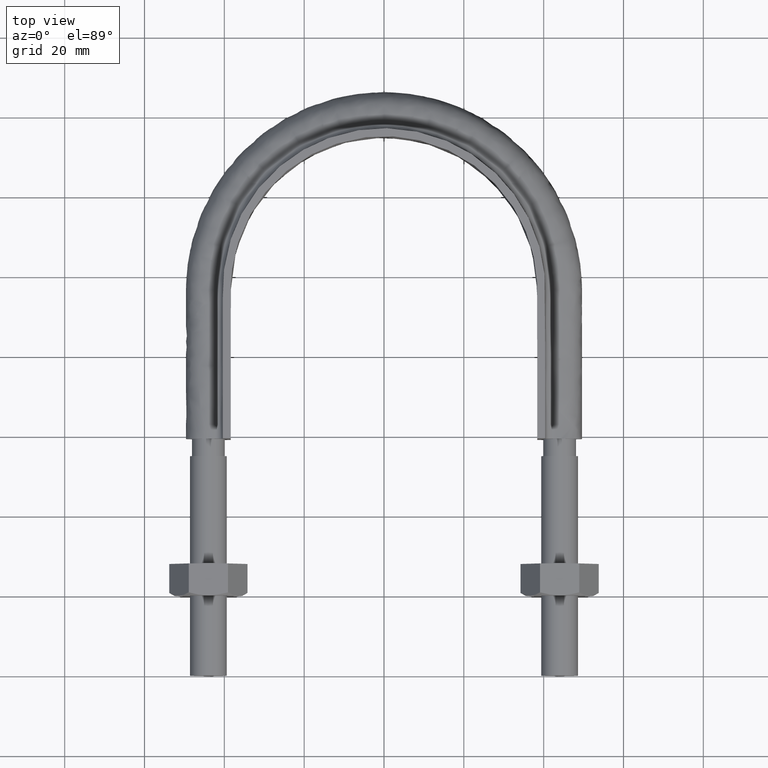
[diagram: clean part render]
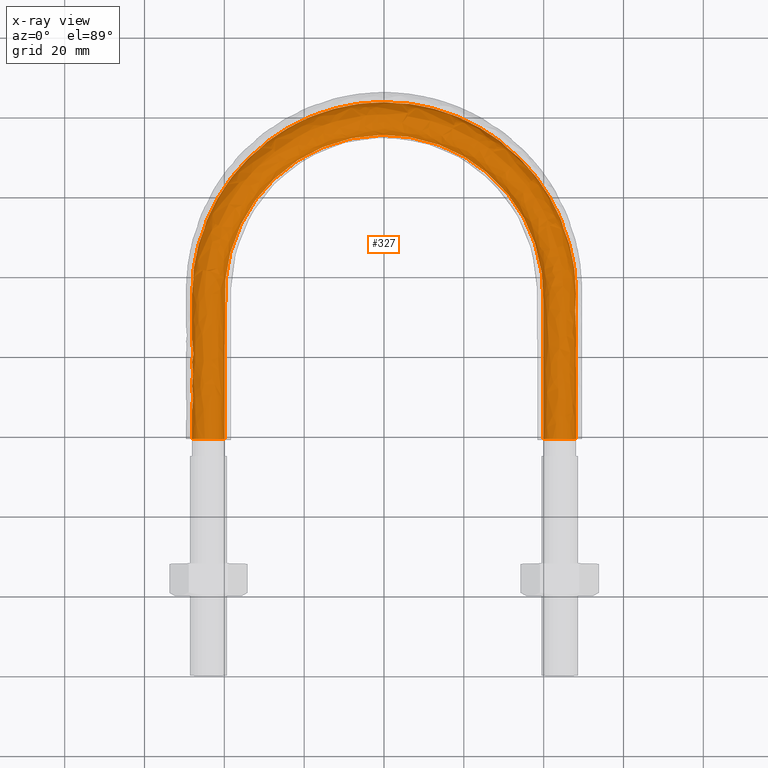
[diagram: x-ray — body ghosted, one internal face saturated and labeled with its STEP entity id]
A machine part, top view, then the same camera in x-ray: the body is ghosted and one INTERNAL B-rep face — a face not visible from any outside direction — is saturated and labeled: STEP entity #327.
In plain terms, the highlighted face is a freeform B-spline surface patch.
Its self-contained STEP definition (entity closure, byte-faithful):
#327 = ADVANCED_FACE( '', ( #423, #424 ), #425, .T. );
#423 = FACE_OUTER_BOUND( '', #1273, .T. );
#424 = FACE_OUTER_BOUND( '', #1274, .T. );
#425 = B_SPLINE_SURFACE_WITH_KNOTS( '', 3, 3, ( ( #1275, #1276, #1277, #1278, #1279, #1280, #1281, #1282, #1283, #1284, #1285, #1286, #1287, #1288, #1289 ), ( #1290, #1291, #1292, #1293, #1294, #1295, #1296, #1297, #1298, #1299, #1300, #1301, #1302, #1303, #1304 ), ( #1305, #1306, #1307, #1308, #1309, #1310, #1311, #1312, #1313, #1314, #1315, #1316, #1317, #1318, #1319 ), ( #1320, #1321, #1322, #1323, #1324, #1325, #1326, #1327, #1328, #1329, #1330, #1331, #1332, #1333, #1334 ), ( #1335, #1336, #1337, #1338, #1339, #1340, #1341, #1342, #1343, #1344, #1345, #1346, #1347, #1348, #1349 ), ( #1350, #1351, #1352, #1353, #1354, #1355, #1356, #1357, #1358, #1359, #1360, #1361, #1362, #1363, #1364 ), ( #1365, #1366, #1367, #1368, #1369, #1370, #1371, #1372, #1373, #1374, #1375, #1376, #1377, #1378, #1379 ), ( #1380, #1381, #1382, #1383, #1384, #1385, #1386, #1387, #1388, #1389, #1390, #1391, #1392, #1393, #1394 ), ( #1395, #1396, #1397, #1398, #1399, #1400, #1401, #1402, #1403, #1404, #1405, #1406, #1407, #1408, #1409 ), ( #1410, #1411, #1412, #1413, #1414, #1415, #1416, #1417, #1418, #1419, #1420, #1421, #1422, #1423, #1424 ) ), .UNSPECIFIED., .T., .F., .F., ( 2, 1, 1, 1, 1, 1, 1, 1, 1, 1, 1, 2 ), ( 4, 3, 1, 1, 1, 1, 1, 3, 4 ), ( -0.285714285714286, -0.142857142857143, 0.000000000000000, 0.142857142857143, 0.285714285714286, 0.428571428571429, 0.571428571428571, 0.714285714285714, 0.857142857142857, 1.00000000000000, 1.14285714285714, 1.28571428571429 ), ( 0.000000000000000, 1.00000000000000, 2.00000000000000, 3.00000000000000, 4.00000000000000, 5.00000000000000, 6.00000000000000, 7.00000000000000, 8.00000000000000 ), .UNSPECIFIED. );
#1273 = EDGE_LOOP( '', ( #1662, #1663, #1664, #1665, #1666, #1667, #1668 ) );
#1274 = EDGE_LOOP( '', ( #1669, #1670, #1671, #1672, #1673, #1674, #1675 ) );
#1275 = CARTESIAN_POINT( '', ( 41.0768231851220, 55.5000000000000, -3.66554778583225 ) );
#1276 = CARTESIAN_POINT( '', ( 41.0768231851220, 68.8666666666667, -3.66554778583225 ) );
#1277 = CARTESIAN_POINT( '', ( 41.0768231851220, 82.2333333333333, -3.66554778583225 ) );
#1278 = CARTESIAN_POINT( '', ( 41.0768231851220, 95.6000000000000, -3.66554778583225 ) );
#1279 = CARTESIAN_POINT( '', ( 41.0768231851220, 102.753960483642, -3.66554778583225 ) );
#1280 = CARTESIAN_POINT( '', ( 37.2364868135197, 117.104191233056, -3.66554778583225 ) );
#1281 = CARTESIAN_POINT( '', ( 21.4984956854616, 132.834859514207, -3.66554778583225 ) );
#1282 = CARTESIAN_POINT( '', ( 3.08505630732181E-014, 138.597805020579, -3.66554778583225 ) );
#1283 = CARTESIAN_POINT( '', ( -21.4984956854615, 132.834859514207, -3.66554778583225 ) );
#1284 = CARTESIAN_POINT( '', ( -37.2364868135197, 117.104191233056, -3.66554778583225 ) );
#1285 = CARTESIAN_POINT( '', ( -41.0768231851219, 102.753960483642, -3.66554778583225 ) );
#1286 = CARTESIAN_POINT( '', ( -41.0768231851220, 95.6000000000000, -3.66554778583225 ) );
#1287 = CARTESIAN_POINT( '', ( -41.0768231851220, 82.2333333333333, -3.66554778583225 ) );
#1288 = CARTESIAN_POINT( '', ( -41.0768231851220, 68.8666666666667, -3.66554778583225 ) );
#1289 = CARTESIAN_POINT( '', ( -41.0768231851220, 55.5000000000000, -3.66554778583225 ) );
#1290 = CARTESIAN_POINT( '', ( 39.3115884074390, 55.5000000000000, 0.000000000000000 ) );
#1291 = CARTESIAN_POINT( '', ( 39.3115884074390, 68.8666666666667, 0.000000000000000 ) );
#1292 = CARTESIAN_POINT( '', ( 39.3115884074390, 82.2333333333333, 0.000000000000000 ) );
#1293 = CARTESIAN_POINT( '', ( 39.3115884074390, 95.6000000000000, 0.000000000000000 ) );
#1294 = CARTESIAN_POINT( '', ( 39.3115884074390, 102.438631661554, 0.000000000000000 ) );
#1295 = CARTESIAN_POINT( '', ( 35.6362865929300, 116.183754606431, 0.000000000000000 ) );
#1296 = CARTESIAN_POINT( '', ( 20.5746196573468, 131.233676607477, 0.000000000000000 ) );
#1297 = CARTESIAN_POINT( '', ( 2.97569846145795E-014, 136.750544307420, 0.000000000000000 ) );
#1298 = CARTESIAN_POINT( '', ( -20.5746196573468, 131.233676607477, 0.000000000000000 ) );
#1299 = CARTESIAN_POINT( '', ( -35.6362865929299, 116.183754606431, 0.000000000000000 ) );
#1300 = CARTESIAN_POINT( '', ( -39.3115884074390, 102.438631661554, 0.000000000000000 ) );
#1301 = CARTESIAN_POINT( '', ( -39.3115884074390, 95.6000000000000, 0.000000000000000 ) );
#1302 = CARTESIAN_POINT( '', ( -39.3115884074390, 82.2333333333333, 0.000000000000000 ) );
#1303 = CARTESIAN_POINT( '', ( -39.3115884074390, 68.8666666666667, 0.000000000000000 ) );
#1304 = CARTESIAN_POINT( '', ( -39.3115884074390, 55.5000000000000, 0.000000000000000 ) );
#1305 = CARTESIAN_POINT( '', ( 41.0768231851220, 55.5000000000000, 3.66554778583225 ) );
#1306 = CARTESIAN_POINT( '', ( 41.0768231851220, 68.8666666666667, 3.66554778583225 ) );
#1307 = CARTESIAN_POINT( '', ( 41.0768231851220, 82.2333333333333, 3.66554778583225 ) );
#1308 = CARTESIAN_POINT( '', ( 41.0768231851220, 95.6000000000000, 3.66554778583225 ) );
#1309 = CARTESIAN_POINT( '', ( 41.0768231851220, 102.753960483642, 3.66554778583225 ) );
#1310 = CARTESIAN_POINT( '', ( 37.2364868135197, 117.104191233056, 3.66554778583225 ) );
#1311 = CARTESIAN_POINT( '', ( 21.4984956854616, 132.834859514207, 3.66554778583225 ) );
#1312 = CARTESIAN_POINT( '', ( 3.08505630732181E-014, 138.597805020579, 3.66554778583225 ) );
#1313 = CARTESIAN_POINT( '', ( -21.4984956854615, 132.834859514207, 3.66554778583225 ) );
#1314 = CARTESIAN_POINT( '', ( -37.2364868135197, 117.104191233056, 3.66554778583225 ) );
#1315 = CARTESIAN_POINT( '', ( -41.0768231851219, 102.753960483642, 3.66554778583225 ) );
#1316 = CARTESIAN_POINT( '', ( -41.0768231851219, 95.6000000000000, 3.66554778583225 ) );
#1317 = CARTESIAN_POINT( '', ( -41.0768231851219, 82.2333333333333, 3.66554778583225 ) );
#1318 = CARTESIAN_POINT( '', ( -41.0768231851220, 68.8666666666667, 3.66554778583225 ) );
#1319 = CARTESIAN_POINT( '', ( -41.0768231851220, 55.5000000000000, 3.66554778583225 ) );
#1320 = CARTESIAN_POINT( '', ( 45.0432697263483, 55.5000000000000, 4.57086332538454 ) );
#1321 = CARTESIAN_POINT( '', ( 45.0432697263483, 68.8666666666667, 4.57086332538454 ) );
#1322 = CARTESIAN_POINT( '', ( 45.0432697263483, 82.2333333333333, 4.57086332538454 ) );
#1323 = CARTESIAN_POINT( '', ( 45.0432697263483, 95.6000000000000, 4.57086332538454 ) );
#1324 = CARTESIAN_POINT( '', ( 45.0432697263483, 103.462497915337, 4.57086332538454 ) );
#1325 = CARTESIAN_POINT( '', ( 40.8321040710490, 119.172393559597, 4.57086332538454 ) );
#1326 = CARTESIAN_POINT( '', ( 23.5744262769990, 136.432684847450, 4.57086332538454 ) );
#1327 = CARTESIAN_POINT( '', ( 3.39609526445041E-014, 142.748562165798, 4.57086332538454 ) );
#1328 = CARTESIAN_POINT( '', ( -23.5744262769989, 136.432684847450, 4.57086332538454 ) );
#1329 = CARTESIAN_POINT( '', ( -40.8321040710490, 119.172393559597, 4.57086332538453 ) );
#1330 = CARTESIAN_POINT( '', ( -45.0432697263483, 103.462497915337, 4.57086332538454 ) );
#1331 = CARTESIAN_POINT( '', ( -45.0432697263483, 95.6000000000000, 4.57086332538454 ) );
#1332 = CARTESIAN_POINT( '', ( -45.0432697263483, 82.2333333333333, 4.57086332538454 ) );
#1333 = CARTESIAN_POINT( '', ( -45.0432697263483, 68.8666666666667, 4.57086332538454 ) );
#1334 = CARTESIAN_POINT( '', ( -45.0432697263483, 55.5000000000000, 4.57086332538454 ) );
#1335 = CARTESIAN_POINT( '', ( 48.2241128848103, 55.5000000000000, 2.03422555230246 ) );
#1336 = CARTESIAN_POINT( '', ( 48.2241128848103, 68.8666666666667, 2.03422555230246 ) );
#1337 = CARTESIAN_POINT( '', ( 48.2241128848103, 82.2333333333333, 2.03422555230246 ) );
#1338 = CARTESIAN_POINT( '', ( 48.2241128848103, 95.6000000000000, 2.03422555230246 ) );
#1339 = CARTESIAN_POINT( '', ( 48.2241128848103, 104.030700819044, 2.03422555230246 ) );
#1340 = CARTESIAN_POINT( '', ( 43.7155652333729, 120.830963050530, 2.03422555230246 ) );
#1341 = CARTESIAN_POINT( '', ( 25.2391933552645, 139.317916749011, 2.03422555230246 ) );
#1342 = CARTESIAN_POINT( '', ( 3.08991341379600E-014, 146.077210952710, 2.03422555230246 ) );
#1343 = CARTESIAN_POINT( '', ( -25.2391933552644, 139.317916749011, 2.03422555230247 ) );
#1344 = CARTESIAN_POINT( '', ( -43.7155652333728, 120.830963050530, 2.03422555230246 ) );
#1345 = CARTESIAN_POINT( '', ( -48.2241128848102, 104.030700819044, 2.03422555230246 ) );
#1346 = CARTESIAN_POINT( '', ( -48.2241128848102, 95.6000000000000, 2.03422555230246 ) );
#1347 = CARTESIAN_POINT( '', ( -48.2241128848102, 82.2333333333333, 2.03422555230246 ) );
#1348 = CARTESIAN_POINT( '', ( -48.2241128848102, 68.8666666666667, 2.03422555230246 ) );
#1349 = CARTESIAN_POINT( '', ( -48.2241128848102, 55.5000000000000, 2.03422555230246 ) );
#1350 = CARTESIAN_POINT( '', ( 48.2241128848103, 55.5000000000000, -2.03422555230246 ) );
#1351 = CARTESIAN_POINT( '', ( 48.2241128848103, 68.8666666666667, -2.03422555230246 ) );
#1352 = CARTESIAN_POINT( '', ( 48.2241128848103, 82.2333333333333, -2.03422555230246 ) );
#1353 = CARTESIAN_POINT( '', ( 48.2241128848103, 95.6000000000000, -2.03422555230246 ) );
#1354 = CARTESIAN_POINT( '', ( 48.2241128848103, 104.030700819044, -2.03422555230246 ) );
#1355 = CARTESIAN_POINT( '', ( 43.7155652333729, 120.830963050530, -2.03422555230246 ) );
#1356 = CARTESIAN_POINT( '', ( 25.2391933552645, 139.317916749011, -2.03422555230246 ) );
#1357 = CARTESIAN_POINT( '', ( 3.08991341379600E-014, 146.077210952710, -2.03422555230246 ) );
#1358 = CARTESIAN_POINT( '', ( -25.2391933552644, 139.317916749011, -2.03422555230246 ) );
#1359 = CARTESIAN_POINT( '', ( -43.7155652333728, 120.830963050530, -2.03422555230246 ) );
#1360 = CARTESIAN_POINT( '', ( -48.2241128848102, 104.030700819044, -2.03422555230246 ) );
#1361 = CARTESIAN_POINT( '', ( -48.2241128848102, 95.6000000000000, -2.03422555230246 ) );
#1362 = CARTESIAN_POINT( '', ( -48.2241128848102, 82.2333333333333, -2.03422555230246 ) );
#1363 = CARTESIAN_POINT( '', ( -48.2241128848102, 68.8666666666667, -2.03422555230246 ) );
#1364 = CARTESIAN_POINT( '', ( -48.2241128848102, 55.5000000000000, -2.03422555230246 ) );
#1365 = CARTESIAN_POINT( '', ( 45.0432697263483, 55.5000000000000, -4.57086332538454 ) );
#1366 = CARTESIAN_POINT( '', ( 45.0432697263483, 68.8666666666667, -4.57086332538454 ) );
#1367 = CARTESIAN_POINT( '', ( 45.0432697263483, 82.2333333333333, -4.57086332538454 ) );
#1368 = CARTESIAN_POINT( '', ( 45.0432697263483, 95.6000000000000, -4.57086332538454 ) );
#1369 = CARTESIAN_POINT( '', ( 45.0432697263483, 103.462497915337, -4.57086332538454 ) );
#1370 = CARTESIAN_POINT( '', ( 40.8321040710490, 119.172393559597, -4.57086332538454 ) );
#1371 = CARTESIAN_POINT( '', ( 23.5744262769990, 136.432684847450, -4.57086332538454 ) );
#1372 = CARTESIAN_POINT( '', ( 3.39609526445041E-014, 142.748562165798, -4.57086332538454 ) );
#1373 = CARTESIAN_POINT( '', ( -23.5744262769989, 136.432684847450, -4.57086332538454 ) );
#1374 = CARTESIAN_POINT( '', ( -40.8321040710490, 119.172393559597, -4.57086332538453 ) );
#1375 = CARTESIAN_POINT( '', ( -45.0432697263483, 103.462497915337, -4.57086332538454 ) );
#1376 = CARTESIAN_POINT( '', ( -45.0432697263483, 95.6000000000000, -4.57086332538454 ) );
#1377 = CARTESIAN_POINT( '', ( -45.0432697263483, 82.2333333333333, -4.57086332538454 ) );
#1378 = CARTESIAN_POINT( '', ( -45.0432697263483, 68.8666666666667, -4.57086332538454 ) );
#1379 = CARTESIAN_POINT( '', ( -45.0432697263483, 55.5000000000000, -4.57086332538454 ) );
#1380 = CARTESIAN_POINT( '', ( 41.0768231851220, 55.5000000000000, -3.66554778583225 ) );
#1381 = CARTESIAN_POINT( '', ( 41.0768231851220, 68.8666666666667, -3.66554778583225 ) );
#1382 = CARTESIAN_POINT( '', ( 41.0768231851220, 82.2333333333333, -3.66554778583225 ) );
#1383 = CARTESIAN_POINT( '', ( 41.0768231851220, 95.6000000000000, -3.66554778583225 ) );
#1384 = CARTESIAN_POINT( '', ( 41.0768231851220, 102.753960483642, -3.66554778583225 ) );
#1385 = CARTESIAN_POINT( '', ( 37.2364868135197, 117.104191233056, -3.66554778583225 ) );
#1386 = CARTESIAN_POINT( '', ( 21.4984956854616, 132.834859514207, -3.66554778583225 ) );
#1387 = CARTESIAN_POINT( '', ( 3.08505630732181E-014, 138.597805020579, -3.66554778583225 ) );
#1388 = CARTESIAN_POINT( '', ( -21.4984956854615, 132.834859514207, -3.66554778583225 ) );
#1389 = CARTESIAN_POINT( '', ( -37.2364868135197, 117.104191233056, -3.66554778583225 ) );
#1390 = CARTESIAN_POINT( '', ( -41.0768231851219, 102.753960483642, -3.66554778583225 ) );
#1391 = CARTESIAN_POINT( '', ( -41.0768231851220, 95.6000000000000, -3.66554778583225 ) );
#1392 = CARTESIAN_POINT( '', ( -41.0768231851220, 82.2333333333333, -3.66554778583225 ) );
#1393 = CARTESIAN_POINT( '', ( -41.0768231851220, 68.8666666666667, -3.66554778583225 ) );
#1394 = CARTESIAN_POINT( '', ( -41.0768231851220, 55.5000000000000, -3.66554778583225 ) );
#1395 = CARTESIAN_POINT( '', ( 39.3115884074390, 55.5000000000000, 0.000000000000000 ) );
#1396 = CARTESIAN_POINT( '', ( 39.3115884074390, 68.8666666666667, 0.000000000000000 ) );
#1397 = CARTESIAN_POINT( '', ( 39.3115884074390, 82.2333333333333, 0.000000000000000 ) );
#1398 = CARTESIAN_POINT( '', ( 39.3115884074390, 95.6000000000000, 0.000000000000000 ) );
#1399 = CARTESIAN_POINT( '', ( 39.3115884074390, 102.438631661554, 0.000000000000000 ) );
#1400 = CARTESIAN_POINT( '', ( 35.6362865929300, 116.183754606431, 0.000000000000000 ) );
#1401 = CARTESIAN_POINT( '', ( 20.5746196573468, 131.233676607477, 0.000000000000000 ) );
#1402 = CARTESIAN_POINT( '', ( 2.97569846145795E-014, 136.750544307420, 0.000000000000000 ) );
#1403 = CARTESIAN_POINT( '', ( -20.5746196573468, 131.233676607477, 0.000000000000000 ) );
#1404 = CARTESIAN_POINT( '', ( -35.6362865929299, 116.183754606431, 0.000000000000000 ) );
#1405 = CARTESIAN_POINT( '', ( -39.3115884074390, 102.438631661554, 0.000000000000000 ) );
#1406 = CARTESIAN_POINT( '', ( -39.3115884074390, 95.6000000000000, 0.000000000000000 ) );
#1407 = CARTESIAN_POINT( '', ( -39.3115884074390, 82.2333333333333, 0.000000000000000 ) );
#1408 = CARTESIAN_POINT( '', ( -39.3115884074390, 68.8666666666667, 0.000000000000000 ) );
#1409 = CARTESIAN_POINT( '', ( -39.3115884074390, 55.5000000000000, 0.000000000000000 ) );
#1410 = CARTESIAN_POINT( '', ( 41.0768231851220, 55.5000000000000, 3.66554778583225 ) );
#1411 = CARTESIAN_POINT( '', ( 41.0768231851220, 68.8666666666667, 3.66554778583225 ) );
#1412 = CARTESIAN_POINT( '', ( 41.0768231851220, 82.2333333333333, 3.66554778583225 ) );
#1413 = CARTESIAN_POINT( '', ( 41.0768231851220, 95.6000000000000, 3.66554778583225 ) );
#1414 = CARTESIAN_POINT( '', ( 41.0768231851220, 102.753960483642, 3.66554778583225 ) );
#1415 = CARTESIAN_POINT( '', ( 37.2364868135197, 117.104191233056, 3.66554778583225 ) );
#1416 = CARTESIAN_POINT( '', ( 21.4984956854616, 132.834859514207, 3.66554778583225 ) );
#1417 = CARTESIAN_POINT( '', ( 3.08505630732181E-014, 138.597805020579, 3.66554778583225 ) );
#1418 = CARTESIAN_POINT( '', ( -21.4984956854615, 132.834859514207, 3.66554778583225 ) );
#1419 = CARTESIAN_POINT( '', ( -37.2364868135197, 117.104191233056, 3.66554778583225 ) );
#1420 = CARTESIAN_POINT( '', ( -41.0768231851219, 102.753960483642, 3.66554778583225 ) );
#1421 = CARTESIAN_POINT( '', ( -41.0768231851219, 95.6000000000000, 3.66554778583225 ) );
#1422 = CARTESIAN_POINT( '', ( -41.0768231851219, 82.2333333333333, 3.66554778583225 ) );
#1423 = CARTESIAN_POINT( '', ( -41.0768231851220, 68.8666666666667, 3.66554778583225 ) );
#1424 = CARTESIAN_POINT( '', ( -41.0768231851220, 55.5000000000000, 3.66554778583225 ) );
#1662 = ORIENTED_EDGE( '', *, *, #2144, .T. );
#1663 = ORIENTED_EDGE( '', *, *, #2145, .T. );
#1664 = ORIENTED_EDGE( '', *, *, #2146, .T. );
#1665 = ORIENTED_EDGE( '', *, *, #2147, .T. );
#1666 = ORIENTED_EDGE( '', *, *, #2148, .T. );
#1667 = ORIENTED_EDGE( '', *, *, #2136, .T. );
#1668 = ORIENTED_EDGE( '', *, *, #2134, .T. );
#1669 = ORIENTED_EDGE( '', *, *, #2149, .T. );
#1670 = ORIENTED_EDGE( '', *, *, #2150, .F. );
#1671 = ORIENTED_EDGE( '', *, *, #2151, .F. );
#1672 = ORIENTED_EDGE( '', *, *, #2152, .F. );
#1673 = ORIENTED_EDGE( '', *, *, #2153, .F. );
#1674 = ORIENTED_EDGE( '', *, *, #2154, .F. );
#1675 = ORIENTED_EDGE( '', *, *, #2126, .F. );
#2126 = EDGE_CURVE( '', #2287, #2288, #2290, .F. );
#2134 = EDGE_CURVE( '', #2304, #2305, #2306, .T. );
#2136 = EDGE_CURVE( '', #2308, #2304, #2309, .T. );
#2144 = EDGE_CURVE( '', #2305, #2317, #2322, .T. );
#2145 = EDGE_CURVE( '', #2317, #2315, #2323, .T. );
#2146 = EDGE_CURVE( '', #2315, #2313, #2324, .T. );
#2147 = EDGE_CURVE( '', #2313, #2311, #2325, .T. );
#2148 = EDGE_CURVE( '', #2311, #2308, #2326, .T. );
#2149 = EDGE_CURVE( '', #2287, #2294, #2327, .T. );
#2150 = EDGE_CURVE( '', #2292, #2294, #2328, .F. );
#2151 = EDGE_CURVE( '', #2291, #2292, #2329, .F. );
#2152 = EDGE_CURVE( '', #2299, #2291, #2330, .F. );
#2153 = EDGE_CURVE( '', #2297, #2299, #2331, .F. );
#2154 = EDGE_CURVE( '', #2288, #2297, #2332, .F. );
#2287 = VERTEX_POINT( '', #2754 );
#2288 = VERTEX_POINT( '', #2755 );
#2290 = B_SPLINE_CURVE_WITH_KNOTS( '', 3, ( #2757, #2758, #2759, #2760 ), .UNSPECIFIED., .F., .F., ( 4, 4 ), ( 0.857142857142857, 1.00000000000000 ), .UNSPECIFIED. );
#2291 = VERTEX_POINT( '', #2761 );
#2292 = VERTEX_POINT( '', #2762 );
#2294 = VERTEX_POINT( '', #2764 );
#2297 = VERTEX_POINT( '', #2767 );
#2299 = VERTEX_POINT( '', #2769 );
#2304 = VERTEX_POINT( '', #2774 );
#2305 = VERTEX_POINT( '', #2775 );
#2306 = B_SPLINE_CURVE_WITH_KNOTS( '', 3, ( #2776, #2777, #2778, #2779 ), .UNSPECIFIED., .F., .F., ( 4, 4 ), ( 0.0219456464543578, 0.0255944202292315 ), .UNSPECIFIED. );
#2308 = VERTEX_POINT( '', #2781 );
#2309 = B_SPLINE_CURVE_WITH_KNOTS( '', 3, ( #2782, #2783, #2784, #2785 ), .UNSPECIFIED., .F., .F., ( 4, 4 ), ( 0.0182856759681131, 0.0219456464543578 ), .UNSPECIFIED. );
#2311 = VERTEX_POINT( '', #2787 );
#2313 = VERTEX_POINT( '', #2789 );
#2315 = VERTEX_POINT( '', #2791 );
#2317 = VERTEX_POINT( '', #2793 );
#2322 = B_SPLINE_CURVE_WITH_KNOTS( '', 3, ( #2798, #2799, #2800, #2801 ), .UNSPECIFIED., .F., .F., ( 4, 4 ), ( 5.20417042793042E-017, 0.00365969768494594 ), .UNSPECIFIED. );
#2323 = B_SPLINE_CURVE_WITH_KNOTS( '', 3, ( #2802, #2803, #2804, #2805 ), .UNSPECIFIED., .F., .F., ( 4, 4 ), ( 0.00365969768494594, 0.00731437302338646 ), .UNSPECIFIED. );
#2324 = B_SPLINE_CURVE_WITH_KNOTS( '', 3, ( #2806, #2807, #2808, #2809 ), .UNSPECIFIED., .F., .F., ( 4, 4 ), ( 0.00731437302338646, 0.0109748044148777 ), .UNSPECIFIED. );
#2325 = B_SPLINE_CURVE_WITH_KNOTS( '', 3, ( #2810, #2811, #2812, #2813 ), .UNSPECIFIED., .F., .F., ( 4, 4 ), ( 0.0109748044148777, 0.0146317467085370 ), .UNSPECIFIED. );
#2326 = B_SPLINE_CURVE_WITH_KNOTS( '', 3, ( #2814, #2815, #2816, #2817 ), .UNSPECIFIED., .F., .F., ( 4, 4 ), ( 0.0146317467085370, 0.0182856759681131 ), .UNSPECIFIED. );
#2327 = B_SPLINE_CURVE_WITH_KNOTS( '', 3, ( #2818, #2819, #2820, #2821 ), .UNSPECIFIED., .F., .F., ( 4, 4 ), ( 3.32356253960057E-017, 0.00365969768494534 ), .UNSPECIFIED. );
#2328 = B_SPLINE_CURVE_WITH_KNOTS( '', 3, ( #2822, #2823, #2824, #2825 ), .UNSPECIFIED., .F., .F., ( 4, 4 ), ( 0.142857142857143, 0.285714285714286 ), .UNSPECIFIED. );
#2329 = B_SPLINE_CURVE_WITH_KNOTS( '', 3, ( #2826, #2827, #2828, #2829 ), .UNSPECIFIED., .F., .F., ( 4, 4 ), ( 0.285714285714286, 0.428571428571429 ), .UNSPECIFIED. );
#2330 = B_SPLINE_CURVE_WITH_KNOTS( '', 3, ( #2830, #2831, #2832, #2833 ), .UNSPECIFIED., .F., .F., ( 4, 4 ), ( 0.428571428571429, 0.571428571428571 ), .UNSPECIFIED. );
#2331 = B_SPLINE_CURVE_WITH_KNOTS( '', 3, ( #2834, #2835, #2836, #2837 ), .UNSPECIFIED., .F., .F., ( 4, 4 ), ( 0.571428571428571, 0.714285714285714 ), .UNSPECIFIED. );
#2332 = B_SPLINE_CURVE_WITH_KNOTS( '', 3, ( #2838, #2839, #2840, #2841 ), .UNSPECIFIED., .F., .F., ( 4, 4 ), ( 0.714285714285714, 0.857142857142857 ), .UNSPECIFIED. );
#2754 = CARTESIAN_POINT( '', ( 39.9000000000000, 59.3000000000000, -3.30788549888553E-014 ) );
#2755 = CARTESIAN_POINT( '', ( 41.4436918123816, 59.3000000000000, -3.20550907812083 ) );
#2757 = CARTESIAN_POINT( '', ( 41.4436918123816, 59.3000000000000, -3.20550907812082 ) );
#2758 = CARTESIAN_POINT( '', ( 40.4884115925620, 59.3000000000000, -2.44369852389020 ) );
#2759 = CARTESIAN_POINT( '', ( 39.9000000000002, 59.3000000000000, -1.22184926194561 ) );
#2760 = CARTESIAN_POINT( '', ( 39.9000000000000, 59.3000000000000, -1.09938100290030E-012 ) );
#2761 = CARTESIAN_POINT( '', ( 47.6939723583999, 59.3000000000000, 1.77892333038204 ) );
#2762 = CARTESIAN_POINT( '', ( 44.9123358292208, 59.3000000000000, 3.99720443994549 ) );
#2764 = CARTESIAN_POINT( '', ( 41.4436918123789, 59.3000000000000, 3.20550907811870 ) );
#2767 = CARTESIAN_POINT( '', ( 44.9123358292214, 59.3000000000000, -3.99720443994536 ) );
#2769 = CARTESIAN_POINT( '', ( 47.6939723583999, 59.3000000000000, -1.77892333038203 ) );
#2774 = CARTESIAN_POINT( '', ( -41.4436918124017, 59.3000000000000, 3.20550907813692 ) );
#2775 = CARTESIAN_POINT( '', ( -39.9000000000000, 59.3000000000000, 5.26458725159965E-014 ) );
#2776 = CARTESIAN_POINT( '', ( -41.4436918124017, 59.3000000000000, 3.20550907813691 ) );
#2777 = CARTESIAN_POINT( '', ( -40.4884115925702, 59.3000000000000, 2.44369852390740 ) );
#2778 = CARTESIAN_POINT( '', ( -39.9000000000000, 59.3000000000000, 1.22184926195370 ) );
#2779 = CARTESIAN_POINT( '', ( -39.9000000000000, 59.3000000000000, 4.33680868994202E-016 ) );
#2781 = CARTESIAN_POINT( '', ( -44.9123358292510, 59.3000000000000, 3.99720443993860 ) );
#2782 = CARTESIAN_POINT( '', ( -44.9123358292611, 59.3000000000000, 3.99720443993590 ) );
#2783 = CARTESIAN_POINT( '', ( -43.7211208793097, 59.3000000000000, 4.26909147887125 ) );
#2784 = CARTESIAN_POINT( '', ( -42.3989720322263, 59.3000000000000, 3.96731963236085 ) );
#2785 = CARTESIAN_POINT( '', ( -41.4436918124017, 59.3000000000000, 3.20550907813691 ) );
#2787 = CARTESIAN_POINT( '', ( -47.6939723583999, 59.3000000000000, 1.77892333038206 ) );
#2789 = CARTESIAN_POINT( '', ( -47.6939723583999, 59.3000000000000, -1.77892333038199 ) );
#2791 = CARTESIAN_POINT( '', ( -44.9123358292208, 59.3000000000000, -3.99720443994549 ) );
#2793 = CARTESIAN_POINT( '', ( -41.4436918123794, 59.3000000000000, -3.20550907811908 ) );
#2798 = CARTESIAN_POINT( '', ( -39.9000000000000, 59.3000000000000, -8.10983225019157E-014 ) );
#2799 = CARTESIAN_POINT( '', ( -39.9000000000000, 59.3000000000000, -1.22184926194420 ) );
#2800 = CARTESIAN_POINT( '', ( -40.4884115925610, 59.3000000000000, -2.44369852388832 ) );
#2801 = CARTESIAN_POINT( '', ( -41.4436918123793, 59.3000000000000, -3.20550907811906 ) );
#2802 = CARTESIAN_POINT( '', ( -41.4436918123793, 59.3000000000000, -3.20550907811905 ) );
#2803 = CARTESIAN_POINT( '', ( -42.3989720321975, 59.3000000000000, -3.96731963234971 ) );
#2804 = CARTESIAN_POINT( '', ( -43.7211208792729, 59.3000000000000, -4.26909147886709 ) );
#2805 = CARTESIAN_POINT( '', ( -44.9123358292208, 59.3000000000000, -3.99720443994549 ) );
#2806 = CARTESIAN_POINT( '', ( -44.9123358292208, 59.3000000000000, -3.99720443994549 ) );
#2807 = CARTESIAN_POINT( '', ( -46.1035507791689, 59.3000000000000, -3.72531740102386 ) );
#2808 = CARTESIAN_POINT( '', ( -47.1638318319896, 59.3000000000000, -2.87977147666317 ) );
#2809 = CARTESIAN_POINT( '', ( -47.6939723583999, 59.3000000000000, -1.77892333038199 ) );
#2810 = CARTESIAN_POINT( '', ( -47.6939723583999, 59.3000000000000, -1.77892333038196 ) );
#2811 = CARTESIAN_POINT( '', ( -48.2241128848102, 59.3000000000000, -0.678075184100784 ) );
#2812 = CARTESIAN_POINT( '', ( -48.2241128848102, 59.3000000000000, 0.678075184100879 ) );
#2813 = CARTESIAN_POINT( '', ( -47.6939723583999, 59.3000000000000, 1.77892333038206 ) );
#2814 = CARTESIAN_POINT( '', ( -47.6939723584043, 59.3000000000000, 1.77892333037182 ) );
#2815 = CARTESIAN_POINT( '', ( -47.1638318319985, 59.3000000000000, 2.87977147665034 ) );
#2816 = CARTESIAN_POINT( '', ( -46.1035507791868, 59.3000000000000, 3.72531740100959 ) );
#2817 = CARTESIAN_POINT( '', ( -44.9123358292510, 59.3000000000000, 3.99720443993860 ) );
#2818 = CARTESIAN_POINT( '', ( 39.9000000000000, 59.3000000000000, 4.33680868994202E-016 ) );
#2819 = CARTESIAN_POINT( '', ( 39.9000000000000, 59.3000000000000, 1.22184926194396 ) );
#2820 = CARTESIAN_POINT( '', ( 40.4884115925609, 59.3000000000000, 2.44369852388792 ) );
#2821 = CARTESIAN_POINT( '', ( 41.4436918123789, 59.3000000000000, 3.20550907811869 ) );
#2822 = CARTESIAN_POINT( '', ( 41.4436918123789, 59.3000000000000, 3.20550907811871 ) );
#2823 = CARTESIAN_POINT( '', ( 42.3989720321971, 59.3000000000000, 3.96731963234960 ) );
#2824 = CARTESIAN_POINT( '', ( 43.7211208792726, 59.3000000000000, 4.26909147886710 ) );
#2825 = CARTESIAN_POINT( '', ( 44.9123358292207, 59.3000000000000, 3.99720443994553 ) );
#2826 = CARTESIAN_POINT( '', ( 44.9123358292208, 59.3000000000000, 3.99720443994550 ) );
#2827 = CARTESIAN_POINT( '', ( 46.1035507791689, 59.3000000000000, 3.72531740102389 ) );
#2828 = CARTESIAN_POINT( '', ( 47.1638318319895, 59.3000000000000, 2.87977147666321 ) );
#2829 = CARTESIAN_POINT( '', ( 47.6939723583999, 59.3000000000000, 1.77892333038206 ) );
#2830 = CARTESIAN_POINT( '', ( 47.6939723583999, 59.3000000000000, 1.77892333038204 ) );
#2831 = CARTESIAN_POINT( '', ( 48.2241128848103, 59.3000000000000, 0.678075184100847 ) );
#2832 = CARTESIAN_POINT( '', ( 48.2241128848103, 59.3000000000000, -0.678075184100830 ) );
#2833 = CARTESIAN_POINT( '', ( 47.6939723583999, 59.3000000000000, -1.77892333038201 ) );
#2834 = CARTESIAN_POINT( '', ( 47.6939723583999, 59.3000000000000, -1.77892333038203 ) );
#2835 = CARTESIAN_POINT( '', ( 47.1638318319896, 59.3000000000000, -2.87977147666302 ) );
#2836 = CARTESIAN_POINT( '', ( 46.1035507791692, 59.3000000000000, -3.72531740102361 ) );
#2837 = CARTESIAN_POINT( '', ( 44.9123358292214, 59.3000000000000, -3.99720443994536 ) );
#2838 = CARTESIAN_POINT( '', ( 44.9123358292214, 59.3000000000000, -3.99720443994536 ) );
#2839 = CARTESIAN_POINT( '', ( 43.7211208792742, 59.3000000000000, -4.26909147886697 ) );
#2840 = CARTESIAN_POINT( '', ( 42.3989720321999, 59.3000000000000, -3.96731963235031 ) );
#2841 = CARTESIAN_POINT( '', ( 41.4436918123817, 59.3000000000000, -3.20550907812095 ) );